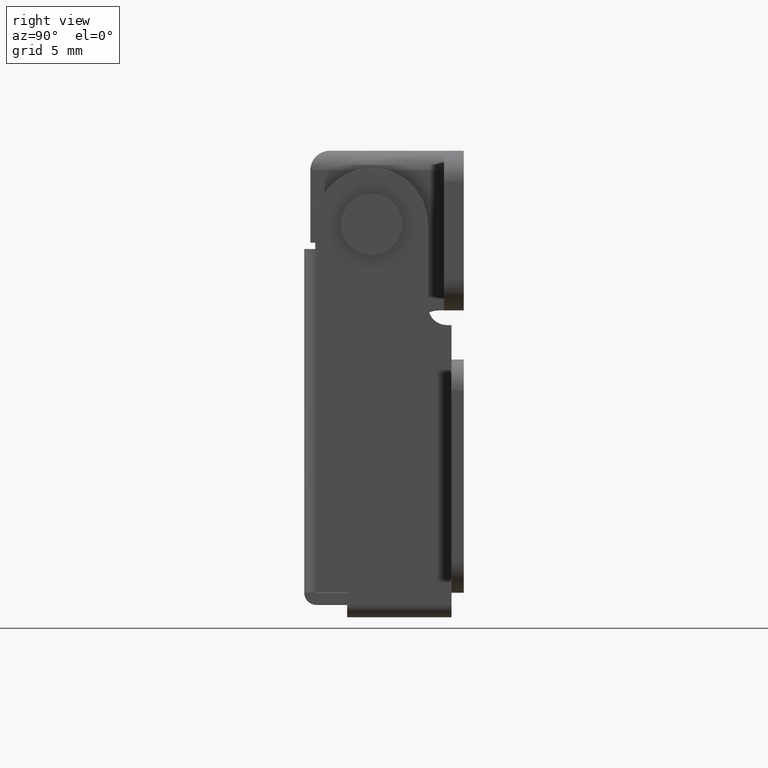
[diagram: clean part render]
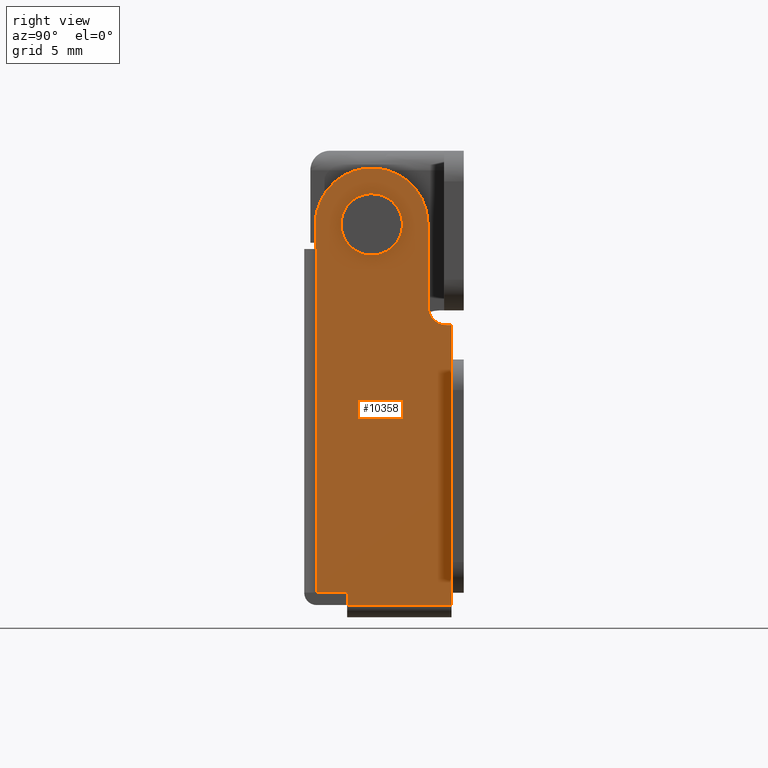
[diagram: same view with one face highlighted and labeled with its STEP entity id]
A machine part, right view. The second image highlights one B-rep face of the part: STEP entity #10358.
In plain terms, the highlighted face is a freeform B-spline surface patch.
Its self-contained STEP definition (entity closure, byte-faithful):
#7516=CARTESIAN_POINT('',(12.000000000000121,-1.489514519348708,0.177049418653654));
#7517=VERTEX_POINT('',#7516);
#7523=CARTESIAN_POINT('',(12.000000000000121,0.0,-1.500000000000000));
#7524=VERTEX_POINT('',#7523);
#7525=CARTESIAN_POINT('',(12.000000000000123,-1.489514519348708,0.177049418653654));
#7526=CARTESIAN_POINT('',(12.000000000000117,-1.500000000000000,0.088835202592845));
#7527=CARTESIAN_POINT('',(12.000000000000121,-1.500000000000000,0.0));
#7528=CARTESIAN_POINT('',(12.000000000000121,-1.500000000000000,-1.500000000000000));
#7529=CARTESIAN_POINT('',(12.000000000000121,0.0,-1.500000000000000));
#7537=(BOUNDED_CURVE()B_SPLINE_CURVE(2,(#7525,#7526,#7527,#7528,#7529),.UNSPECIFIED.,.F.,.U.)B_SPLINE_CURVE_WITH_KNOTS((3,2,3),(0.229562692875290,0.250000000000000,0.500000000000000),.UNSPECIFIED.)CURVE()GEOMETRIC_REPRESENTATION_ITEM()RATIONAL_B_SPLINE_CURVE((0.956027184142220,0.976056205329459,1.0,0.707106781186548,1.0))REPRESENTATION_ITEM(''));
#7538=EDGE_CURVE('',#7517,#7524,#7537,.T.);
#7540=CARTESIAN_POINT('',(12.000000000000121,1.497202197630507,-0.091572809339782));
#7541=VERTEX_POINT('',#7540);
#7542=CARTESIAN_POINT('',(12.000000000000121,0.0,-1.500000000000000));
#7543=CARTESIAN_POINT('',(12.000000000000121,1.411059100287728,-1.500000000000000));
#7544=CARTESIAN_POINT('',(12.000000000000121,1.497202197630507,-0.091572809339782));
#7552=(BOUNDED_CURVE()B_SPLINE_CURVE(2,(#7542,#7543,#7544),.UNSPECIFIED.,.F.,.U.)B_SPLINE_CURVE_WITH_KNOTS((3,3),(0.500000000000000,0.739332962233325),.UNSPECIFIED.)CURVE()GEOMETRIC_REPRESENTATION_ITEM()RATIONAL_B_SPLINE_CURVE((1.0,0.719603993293292,0.976072041654678))REPRESENTATION_ITEM(''));
#7553=EDGE_CURVE('',#7524,#7541,#7552,.T.);
#7627=CARTESIAN_POINT('',(12.000000000000121,0.0,1.500000000000000));
#7628=VERTEX_POINT('',#7627);
#7629=CARTESIAN_POINT('',(12.000000000000117,1.497202197630507,-0.091572809339782));
#7630=CARTESIAN_POINT('',(12.000000000000115,1.500000000000000,-0.045829144985485));
#7631=CARTESIAN_POINT('',(12.000000000000121,1.500000000000000,0.0));
#7632=CARTESIAN_POINT('',(12.000000000000121,1.500000000000000,1.500000000000000));
#7633=CARTESIAN_POINT('',(12.000000000000121,0.0,1.500000000000000));
#7641=(BOUNDED_CURVE()B_SPLINE_CURVE(2,(#7629,#7630,#7631,#7632,#7633),.UNSPECIFIED.,.F.,.U.)B_SPLINE_CURVE_WITH_KNOTS((3,2,3),(0.739332962233326,0.750000000000000,1.0),.UNSPECIFIED.)CURVE()GEOMETRIC_REPRESENTATION_ITEM()RATIONAL_B_SPLINE_CURVE((0.976072041654679,0.987502787893256,1.0,0.707106781186548,1.0))REPRESENTATION_ITEM(''));
#7642=EDGE_CURVE('',#7541,#7628,#7641,.T.);
#7644=CARTESIAN_POINT('',(12.000000000000121,0.0,1.500000000000000));
#7645=CARTESIAN_POINT('',(12.000000000000123,-1.332263530324844,1.500000000000000));
#7646=CARTESIAN_POINT('',(12.000000000000123,-1.489514519348708,0.177049418653654));
#7654=(BOUNDED_CURVE()B_SPLINE_CURVE(2,(#7644,#7645,#7646),.UNSPECIFIED.,.F.,.U.)B_SPLINE_CURVE_WITH_KNOTS((3,3),(0.0,0.229562692875290),.UNSPECIFIED.)CURVE()GEOMETRIC_REPRESENTATION_ITEM()RATIONAL_B_SPLINE_CURVE((1.0,0.731050575857089,0.956027184142220))REPRESENTATION_ITEM(''));
#7655=EDGE_CURVE('',#7628,#7517,#7654,.T.);
#7852=CARTESIAN_POINT('',(12.0,-4.500000000000000,-2.0));
#7853=VERTEX_POINT('',#7852);
#7869=CARTESIAN_POINT('',(12.0,-4.599991000000000,-2.0));
#7870=VERTEX_POINT('',#7869);
#7871=CARTESIAN_POINT('',(12.0,-4.599991000000000,-2.0));
#7872=CARTESIAN_POINT('',(12.0,-4.500000000000000,-2.0));
#7873=QUASI_UNIFORM_CURVE('',1,(#7871,#7872),.UNSPECIFIED.,.F.,.U.);
#7874=EDGE_CURVE('',#7870,#7853,#7873,.T.);
#7900=CARTESIAN_POINT('',(12.0,-4.500000000000000,-29.989999999999998));
#7901=VERTEX_POINT('',#7900);
#7915=CARTESIAN_POINT('',(12.0,-4.500000000000000,-2.0));
#7916=CARTESIAN_POINT('',(12.0,-4.500000000000000,-29.989999999999998));
#7917=QUASI_UNIFORM_CURVE('',1,(#7915,#7916),.UNSPECIFIED.,.F.,.U.);
#7918=EDGE_CURVE('',#7853,#7901,#7917,.T.);
#8993=CARTESIAN_POINT('',(12.000000000000121,6.500000000000000,-31.0));
#8994=VERTEX_POINT('',#8993);
#9010=CARTESIAN_POINT('',(12.0,-2.0,-31.0));
#9011=VERTEX_POINT('',#9010);
#9012=CARTESIAN_POINT('',(12.0,-2.0,-31.0));
#9013=CARTESIAN_POINT('',(12.000000000000121,6.500000000000000,-31.0));
#9014=QUASI_UNIFORM_CURVE('',1,(#9012,#9013),.UNSPECIFIED.,.F.,.U.);
#9015=EDGE_CURVE('',#9011,#8994,#9014,.T.);
#9711=CARTESIAN_POINT('',(12.000000000000121,6.500000000000000,-30.0));
#9712=VERTEX_POINT('',#9711);
#9757=CARTESIAN_POINT('',(12.000000000000121,6.500000000000000,-11.0));
#9758=VERTEX_POINT('',#9757);
#9817=CARTESIAN_POINT('',(12.000000000000121,6.500000000000000,-8.199997000000000));
#9818=VERTEX_POINT('',#9817);
#9824=CARTESIAN_POINT('',(12.000000000000121,6.500000000000000,-8.199997000000000));
#9825=CARTESIAN_POINT('',(12.000000000000121,6.500000000000000,-11.0));
#9826=QUASI_UNIFORM_CURVE('',1,(#9824,#9825),.UNSPECIFIED.,.F.,.U.);
#9827=EDGE_CURVE('',#9818,#9758,#9826,.T.);
#9861=CARTESIAN_POINT('',(12.000000000000121,6.100006026179830,-8.199997000000201));
#9862=VERTEX_POINT('',#9861);
#9868=CARTESIAN_POINT('',(12.000000000000121,6.100006026179830,-8.199997000000201));
#9869=CARTESIAN_POINT('',(12.000000000000121,6.500000000000000,-8.199997000000000));
#9870=QUASI_UNIFORM_CURVE('',1,(#9868,#9869),.UNSPECIFIED.,.F.,.U.);
#9871=EDGE_CURVE('',#9862,#9818,#9870,.T.);
#9922=CARTESIAN_POINT('',(12.000000000000121,4.600005999999900,-6.699997130899891));
#9923=VERTEX_POINT('',#9922);
#9929=CARTESIAN_POINT('',(12.000000000000121,4.600005999999896,-6.699997130899892));
#9930=CARTESIAN_POINT('',(12.000000000000121,4.600006130899578,-8.199997026180139));
#9931=CARTESIAN_POINT('',(12.000000000000121,6.100006026179830,-8.199997000000201));
#9939=(BOUNDED_CURVE()B_SPLINE_CURVE(2,(#9929,#9930,#9931),.UNSPECIFIED.,.F.,.U.)CURVE()GEOMETRIC_REPRESENTATION_ITEM()QUASI_UNIFORM_CURVE()RATIONAL_B_SPLINE_CURVE((1.0,0.707106805869229,1.0))REPRESENTATION_ITEM(''));
#9940=EDGE_CURVE('',#9923,#9862,#9939,.T.);
#9986=CARTESIAN_POINT('',(12.0,-2.0,-29.989999999999998));
#9987=VERTEX_POINT('',#9986);
#9988=CARTESIAN_POINT('',(12.0,-2.0,-29.989999999999998));
#9989=CARTESIAN_POINT('',(12.0,-2.0,-31.0));
#9990=QUASI_UNIFORM_CURVE('',1,(#9988,#9989),.UNSPECIFIED.,.F.,.U.);
#9991=EDGE_CURVE('',#9987,#9011,#9990,.T.);
#10058=CARTESIAN_POINT('',(12.000000000000121,-4.599991000000000,-0.009099446072249));
#10059=VERTEX_POINT('',#10058);
#10065=CARTESIAN_POINT('',(12.000000000000121,4.600000000000000,0.0));
#10066=VERTEX_POINT('',#10065);
#10067=CARTESIAN_POINT('',(12.000000000000121,4.600000000000000,0.0));
#10068=CARTESIAN_POINT('',(12.000000000000121,4.600000000000000,2.657833723765079));
#10069=CARTESIAN_POINT('',(12.000000000000121,2.297372714657439,3.985232566607313));
#10070=CARTESIAN_POINT('',(12.000000000000121,-0.005254570685121,5.312631409449545));
#10071=CARTESIAN_POINT('',(12.000000000000121,-2.305251569542395,3.980680243516467));
#10072=CARTESIAN_POINT('',(12.000000000000121,-4.605248568399670,2.648729077583387));
#10073=CARTESIAN_POINT('',(12.000000000000121,-4.599991000000020,-0.009099446072247));
#10081=(BOUNDED_CURVE()B_SPLINE_CURVE(2,(#10067,#10068,#10069,#10070,#10071,#10072,#10073),.UNSPECIFIED.,.F.,.U.)B_SPLINE_CURVE_WITH_KNOTS((3,2,2,3),(0.0,0.333333333333333,0.666666666666667,1.0),.UNSPECIFIED.)CURVE()GEOMETRIC_REPRESENTATION_ITEM()RATIONAL_B_SPLINE_CURVE((1.0,0.865860511575764,1.0,0.865860511575764,1.0,0.865860511575764,1.0))REPRESENTATION_ITEM(''));
#10082=EDGE_CURVE('',#10066,#10059,#10081,.T.);
#10144=CARTESIAN_POINT('',(12.0,-4.599991000000000,-2.0));
#10145=CARTESIAN_POINT('',(12.000000000000121,-4.599991000000000,-0.009099446072249));
#10146=QUASI_UNIFORM_CURVE('',1,(#10144,#10145),.UNSPECIFIED.,.F.,.U.);
#10147=EDGE_CURVE('',#7870,#10059,#10146,.T.);
#10180=CARTESIAN_POINT('',(12.000000000000121,4.600000000000000,0.0));
#10181=CARTESIAN_POINT('',(12.000000000000121,4.600005999999900,-6.699997130899891));
#10182=QUASI_UNIFORM_CURVE('',1,(#10180,#10181),.UNSPECIFIED.,.F.,.U.);
#10183=EDGE_CURVE('',#10066,#9923,#10182,.T.);
#10249=CARTESIAN_POINT('',(12.000000000000121,6.500000000000000,-11.0));
#10250=CARTESIAN_POINT('',(12.000000000000121,6.500000000000000,-30.0));
#10251=QUASI_UNIFORM_CURVE('',1,(#10249,#10250),.UNSPECIFIED.,.F.,.U.);
#10252=EDGE_CURVE('',#9758,#9712,#10251,.T.);
#10324=CARTESIAN_POINT('',(12.0,-5.154435424737290,6.378217568615796));
#10325=CARTESIAN_POINT('',(12.0,7.054444821703902,6.378217568615796));
#10326=CARTESIAN_POINT('',(12.0,-5.154435424737290,-32.778220773479298));
#10327=CARTESIAN_POINT('',(12.0,7.054444821703902,-32.778220773479298));
#10328=B_SPLINE_SURFACE_WITH_KNOTS('',1,1,((#10324,#10326),(#10325,#10327)),.UNSPECIFIED.,.F.,.F.,.U.,(2,2),(2,2),(0.0,12.208880246441190),(0.0,39.156438342095093),.UNSPECIFIED.);
#10329=ORIENTED_EDGE('',*,*,#7918,.T.);
#10330=CARTESIAN_POINT('',(12.0,-4.500000000000000,-29.989999999999998));
#10331=CARTESIAN_POINT('',(12.0,-2.0,-29.989999999999998));
#10332=QUASI_UNIFORM_CURVE('',1,(#10330,#10331),.UNSPECIFIED.,.F.,.U.);
#10333=EDGE_CURVE('',#7901,#9987,#10332,.T.);
#10334=ORIENTED_EDGE('',*,*,#10333,.T.);
#10335=ORIENTED_EDGE('',*,*,#9991,.T.);
#10336=ORIENTED_EDGE('',*,*,#9015,.T.);
#10337=CARTESIAN_POINT('',(12.000000000000121,6.500000000000000,-30.0));
#10338=CARTESIAN_POINT('',(12.000000000000121,6.500000000000000,-31.0));
#10339=QUASI_UNIFORM_CURVE('',1,(#10337,#10338),.UNSPECIFIED.,.F.,.U.);
#10340=EDGE_CURVE('',#9712,#8994,#10339,.T.);
#10341=ORIENTED_EDGE('',*,*,#10340,.F.);
#10342=ORIENTED_EDGE('',*,*,#10252,.F.);
#10343=ORIENTED_EDGE('',*,*,#9827,.F.);
#10344=ORIENTED_EDGE('',*,*,#9871,.F.);
#10345=ORIENTED_EDGE('',*,*,#9940,.F.);
#10346=ORIENTED_EDGE('',*,*,#10183,.F.);
#10347=ORIENTED_EDGE('',*,*,#10082,.T.);
#10348=ORIENTED_EDGE('',*,*,#10147,.F.);
#10349=ORIENTED_EDGE('',*,*,#7874,.T.);
#10350=EDGE_LOOP('',(#10329,#10334,#10335,#10336,#10341,#10342,#10343,#10344,#10345,#10346,#10347,#10348,#10349));
#10351=FACE_OUTER_BOUND('',#10350,.T.);
#10352=ORIENTED_EDGE('',*,*,#7553,.F.);
#10353=ORIENTED_EDGE('',*,*,#7538,.F.);
#10354=ORIENTED_EDGE('',*,*,#7655,.F.);
#10355=ORIENTED_EDGE('',*,*,#7642,.F.);
#10356=EDGE_LOOP('',(#10352,#10353,#10354,#10355));
#10357=FACE_BOUND('',#10356,.T.);
#10358=ADVANCED_FACE('',(#10351,#10357),#10328,.F.);